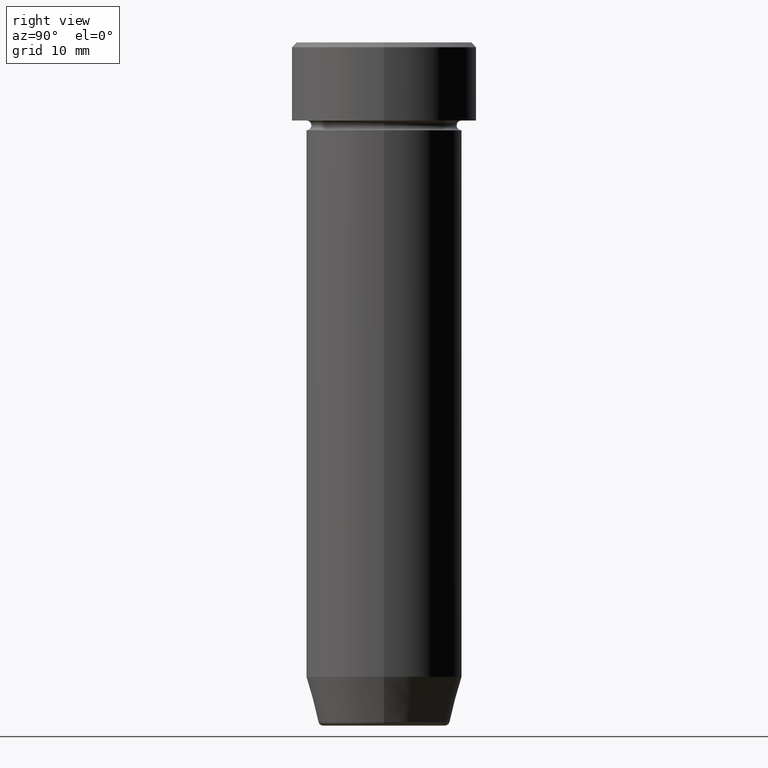
[diagram: clean part render]
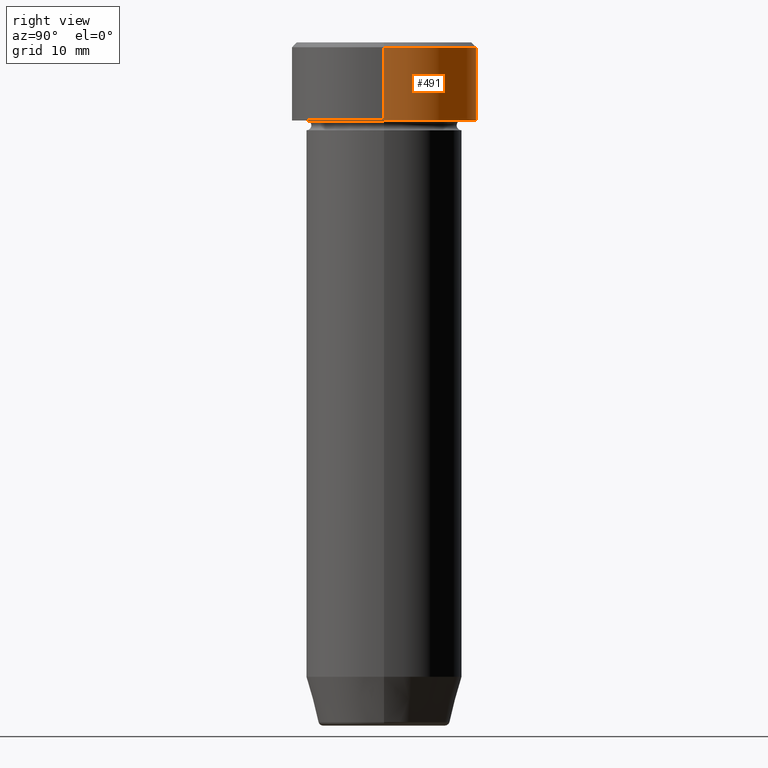
[diagram: same view with one face highlighted and labeled with its STEP entity id]
A machine part, right view. The second image highlights one B-rep face of the part: STEP entity #491.
In plain terms, the highlighted cylindrical surface (partial cylindrical patch) has radius 9.5 mm, axis along (-0, -0, 1).
Its self-contained STEP definition (entity closure, byte-faithful):
#16 = EDGE_CURVE ( 'NONE', #115, #524, #221, .T. ) ;
#27 = EDGE_CURVE ( 'NONE', #331, #524, #161, .T. ) ;
#36 = CYLINDRICAL_SURFACE ( 'NONE', #408, 9.500000000000000000 ) ;
#70 = AXIS2_PLACEMENT_3D ( 'NONE', #360, #361, #548 ) ;
#115 = VERTEX_POINT ( 'NONE', #302 ) ;
#121 = DIRECTION ( 'NONE',  ( -0.000000000000000000, -0.000000000000000000, 1.000000000000000000 ) ) ;
#140 = CARTESIAN_POINT ( 'NONE',  ( 9.500000000000000000, 0.000000000000000000, 0.000000000000000000 ) ) ;
#161 = CIRCLE ( 'NONE', #506, 9.500000000000000000 ) ;
#170 = EDGE_CURVE ( 'NONE', #115, #412, #213, .T. ) ;
#182 = DIRECTION ( 'NONE',  ( -0.000000000000000000, -0.000000000000000000, 1.000000000000000000 ) ) ;
#207 = ORIENTED_EDGE ( 'NONE', *, *, #16, .F. ) ;
#213 = CIRCLE ( 'NONE', #70, 9.500000000000000000 ) ;
#216 = EDGE_CURVE ( 'NONE', #412, #331, #377, .T. ) ;
#221 = LINE ( 'NONE', #140, #356 ) ;
#223 = DIRECTION ( 'NONE',  ( -0.000000000000000000, -0.000000000000000000, 1.000000000000000000 ) ) ;
#265 = CARTESIAN_POINT ( 'NONE',  ( 9.500000000000000000, 0.000000000000000000, -0.4999999999999968914 ) ) ;
#302 = CARTESIAN_POINT ( 'NONE',  ( 9.500000000000000000, 0.000000000000000000, -8.000000000000000000 ) ) ;
#321 = DIRECTION ( 'NONE',  ( 0.000000000000000000, 0.000000000000000000, -1.000000000000000000 ) ) ;
#328 = CARTESIAN_POINT ( 'NONE',  ( 0.000000000000000000, 0.000000000000000000, -0.4999999999999968914 ) ) ;
#331 = VERTEX_POINT ( 'NONE', #400 ) ;
#356 = VECTOR ( 'NONE', #182, 1000.000000000000000 ) ;
#360 = CARTESIAN_POINT ( 'NONE',  ( 0.000000000000000000, 0.000000000000000000, -8.000000000000000000 ) ) ;
#361 = DIRECTION ( 'NONE',  ( -0.000000000000000000, -0.000000000000000000, 1.000000000000000000 ) ) ;
#377 = LINE ( 'NONE', #509, #392 ) ;
#378 = EDGE_LOOP ( 'NONE', ( #430, #448, #421, #207 ) ) ;
#384 = DIRECTION ( 'NONE',  ( 1.000000000000000000, 0.000000000000000000, 0.000000000000000000 ) ) ;
#392 = VECTOR ( 'NONE', #223, 1000.000000000000000 ) ;
#400 = CARTESIAN_POINT ( 'NONE',  ( -9.500000000000000000, 1.163414459189985485E-15, -0.4999999999999968914 ) ) ;
#408 = AXIS2_PLACEMENT_3D ( 'NONE', #493, #121, #446 ) ;
#412 = VERTEX_POINT ( 'NONE', #452 ) ;
#421 = ORIENTED_EDGE ( 'NONE', *, *, #27, .T. ) ;
#428 = FACE_OUTER_BOUND ( 'NONE', #378, .T. ) ;
#430 = ORIENTED_EDGE ( 'NONE', *, *, #170, .T. ) ;
#446 = DIRECTION ( 'NONE',  ( 1.000000000000000000, 0.000000000000000000, 0.000000000000000000 ) ) ;
#448 = ORIENTED_EDGE ( 'NONE', *, *, #216, .T. ) ;
#452 = CARTESIAN_POINT ( 'NONE',  ( -9.500000000000000000, 1.163414459189985485E-15, -8.000000000000000000 ) ) ;
#491 = ADVANCED_FACE ( 'NONE', ( #428 ), #36, .T. ) ;
#493 = CARTESIAN_POINT ( 'NONE',  ( 0.000000000000000000, 0.000000000000000000, 0.000000000000000000 ) ) ;
#506 = AXIS2_PLACEMENT_3D ( 'NONE', #328, #321, #384 ) ;
#509 = CARTESIAN_POINT ( 'NONE',  ( -9.500000000000000000, 1.163414459189985485E-15, 0.000000000000000000 ) ) ;
#524 = VERTEX_POINT ( 'NONE', #265 ) ;
#548 = DIRECTION ( 'NONE',  ( 1.000000000000000000, 0.000000000000000000, 0.000000000000000000 ) ) ;